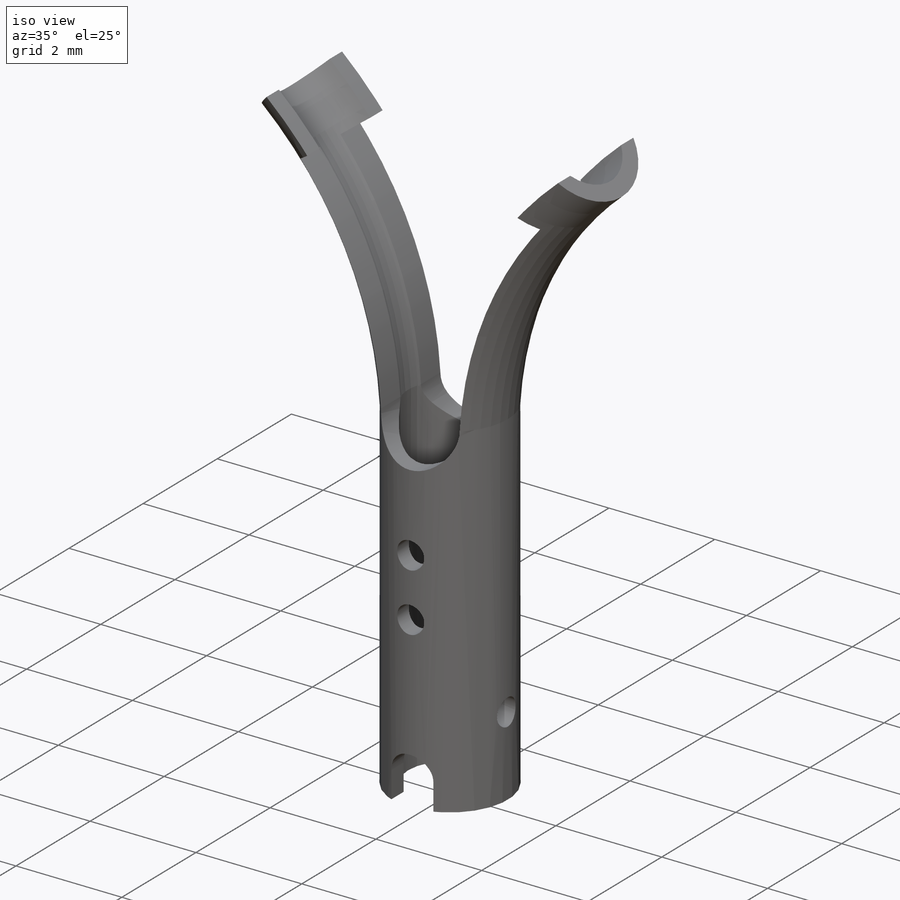
[diagram: iso view]
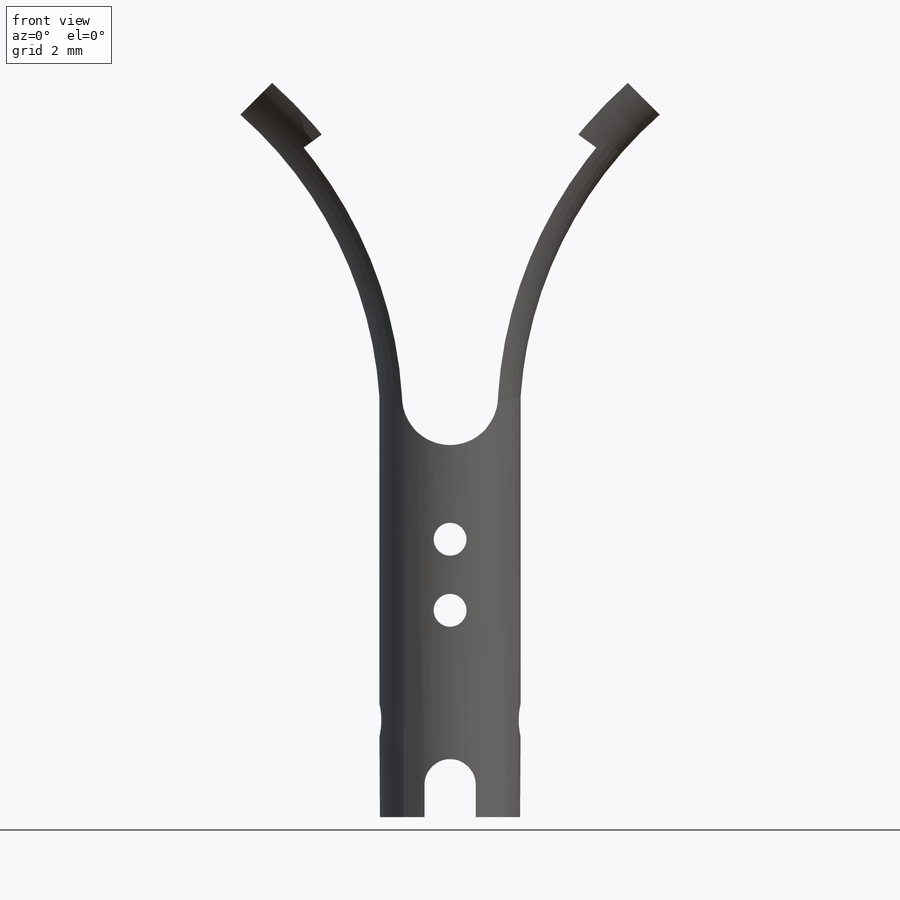
[diagram: front view]
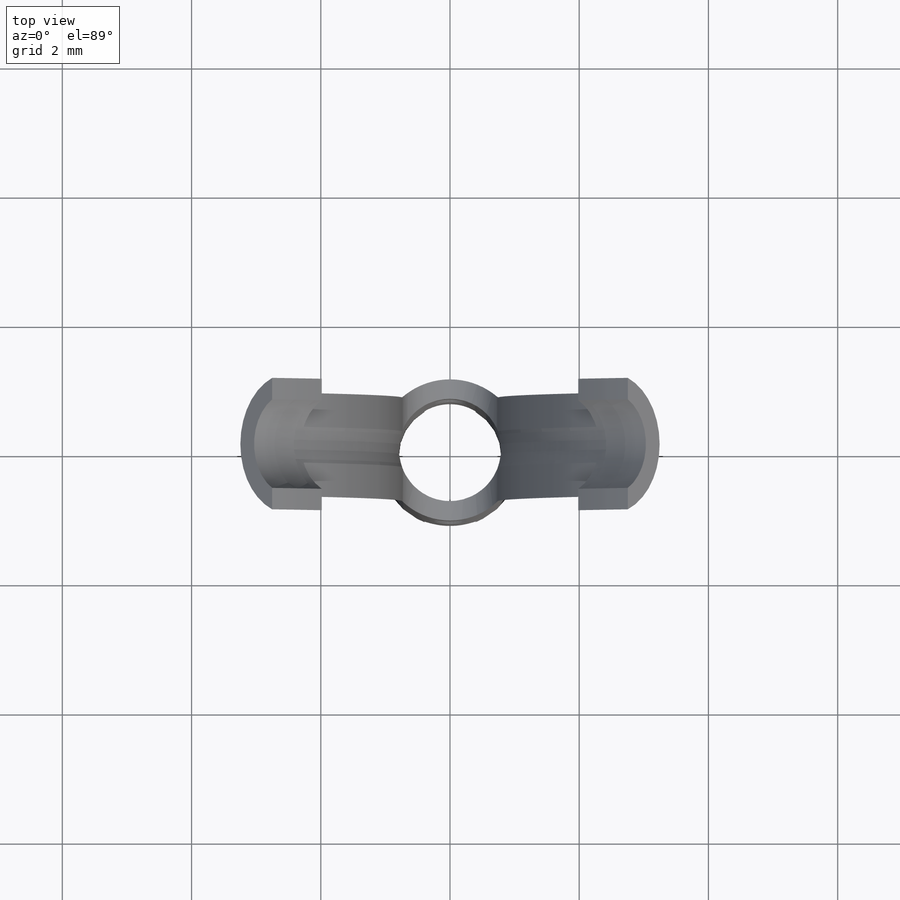
[diagram: top view]
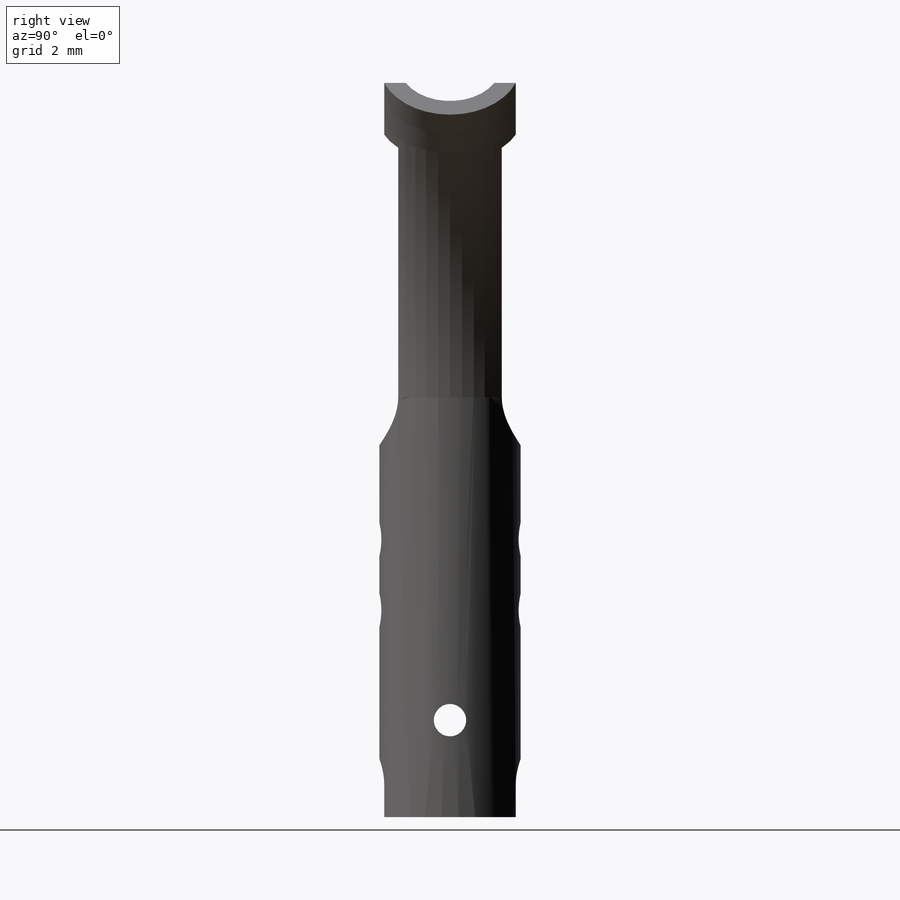
[diagram: right view]
SOLIDWORKS PART (.sldprt)
format: sldprt  version: not decoded by parser v0  size: 419,328 bytes
history: native  units: mm
features: sketch x14, cut_extrude x6, sweep x3, mirror x2, material x1, pattern_linear x1 (+13 scaffold rows collapsed)
feature tree (40):
  scaffold x13  (default folders/planes/origin — collapsed)
  material  "Material <not specified>"
  sketch  "Sketch1"  dims[c1.D1=2.1844mm c2.D1=6.5mm c2.D5=0.3mm c2.D6=1.0mm c2.D7=5.0mm]
  sketch  "Sketch2"
  sketch  "Sketch3"  dims[D1=0.35mm]
  sketch  "Sketch4"  dims[c1.D3=~6.064574mm c1.D1=5.0mm c1.D2=3.0mm c1.D4=~2.819845mm c2.D2=~5.830952mm c2.D3=~5.830952mm c3.D2=~5.830952mm c3.D3=~6.056236mm c4.D2=5.0mm]
  sweep  "Sweep1"
  sketch  "Sketch12"  dims[D1=~0.396875mm]
  sweep  "Sweep2"
  sketch  "Sketch4<2>"
  sketch  "Sketch13"  dims[D1=4.0mm]
  sketch  "Sketch14"  dims[D1=0.0mm D2=0.0mm]
  sweep  "Cut-Sweep1"
  mirror  "Mirror1"
  sketch  "Sketch5"
  cut_extrude  "Cut-Extrude1"  Depth=20mm
  sketch  "Sketch6"  dims[D1=1.0mm D2=1.6mm D3=0.8mm]
  cut_extrude  "Cut-Extrude2"  Depth=20mm
  pattern_linear  "LPattern1"  Count1=4 Count2=1 Spacing1=1.2mm Spacing2=10mm
  sketch  "Sketch7"
  cut_extrude  "Cut-Extrude3"  Depth=1mm
  mirror  "Mirror2"
  sketch  "Sketch10"  dims[c1.D1=0.508mm c1.D3=~0.79375mm c1.D5=0.508mm c1.D2=1.8mm c1.D4=2.2mm c2.D2=0.5mm c2.D6=1.1mm c2.D4=2.2mm c3.D6=~173.116907deg]
  cut_extrude  "Cut-Extrude5"  Depth=10mm
  sketch  "Sketch9"  dims[D1=0.5mm D2=1.5mm]
  cut_extrude  "Cut-Extrude4"  Depth=10mm
  sketch  "Sketch15"  dims[D1=0.1mm]
  cut_extrude  "Cut-Extrude6"  Depth=2mm
decode coverage: 17 of 26 modeling features carry decoded parameters
note: ~ marks probable driven/reference dimensions
note: suppression state not decoded; provenance and decode notes live in map.json
